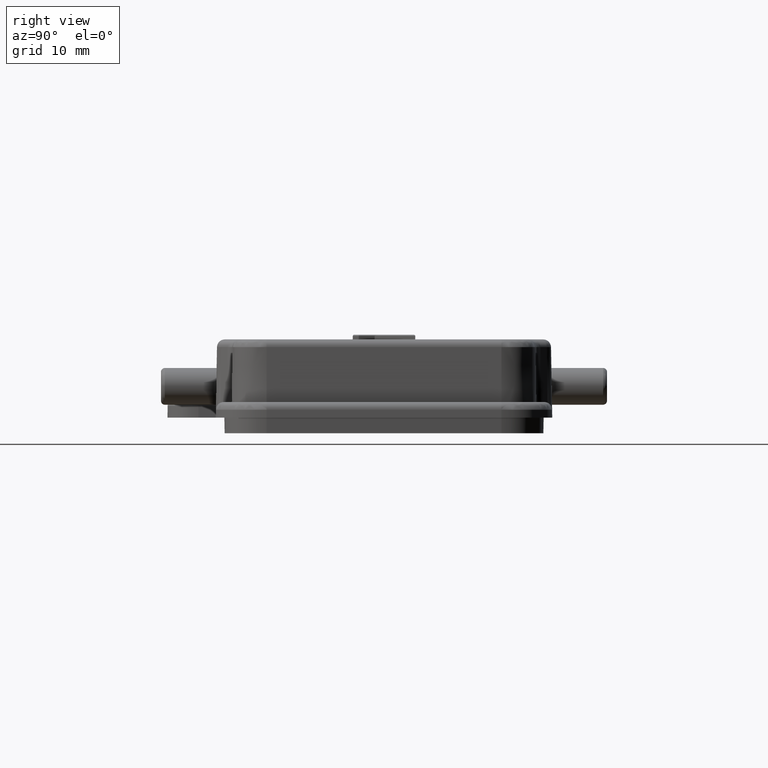
[diagram: clean part render]
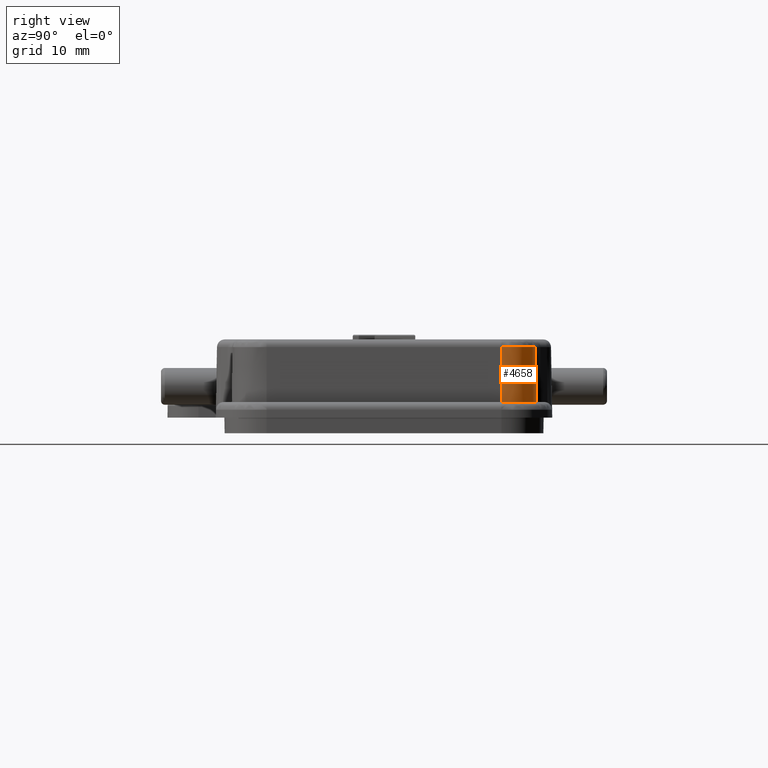
[diagram: same view with one face highlighted and labeled with its STEP entity id]
A machine part, right view. The second image highlights one B-rep face of the part: STEP entity #4658.
In plain terms, the highlighted conical surface has half-angle 1 deg.
Its self-contained STEP definition (entity closure, byte-faithful):
#4 = DIRECTION ( 'NONE',  ( -1.000000000000000000, 0.000000000000000000, 0.000000000000000000 ) ) ;
#378 = LINE ( 'NONE', #2678, #1929 ) ;
#667 = EDGE_CURVE ( 'NONE', #1499, #6733, #378, .T. ) ;
#769 = DIRECTION ( 'NONE',  ( -0.000000000000000000, -0.000000000000000000, -1.000000000000000000 ) ) ;
#788 = CARTESIAN_POINT ( 'NONE',  ( 1.356893301974950283, 0.5905511811023621549, 0.1574803149613818731 ) ) ;
#1192 = ORIENTED_EDGE ( 'NONE', *, *, #667, .F. ) ;
#1234 = EDGE_CURVE ( 'NONE', #1641, #6733, #4190, .T. ) ;
#1354 = FACE_OUTER_BOUND ( 'NONE', #3014, .T. ) ;
#1375 = DIRECTION ( 'NONE',  ( 0.000000000000000000, 0.000000000000000000, 1.000000000000000000 ) ) ;
#1421 = CIRCLE ( 'NONE', #6419, 0.1709684953841939803 ) ;
#1493 = ORIENTED_EDGE ( 'NONE', *, *, #1234, .T. ) ;
#1499 = VERTEX_POINT ( 'NONE', #4621 ) ;
#1641 = VERTEX_POINT ( 'NONE', #788 ) ;
#1929 = VECTOR ( 'NONE', #7114, 39.37007874015748143 ) ;
#2066 = DIRECTION ( 'NONE',  ( 1.000000000000000000, 0.000000000000000000, 0.000000000000000000 ) ) ;
#2084 = CARTESIAN_POINT ( 'NONE',  ( 344.2760747777819006, 0.5905511811023621549, -19645.66929133858503 ) ) ;
#2531 = CARTESIAN_POINT ( 'NONE',  ( 1.352070857590689679, 0.5905511811023621549, 0.4337579687576293419 ) ) ;
#2678 = CARTESIAN_POINT ( 'NONE',  ( 1.181102362204724310, 0.7677165354330708347, 0.07874015748031495954 ) ) ;
#3014 = EDGE_LOOP ( 'NONE', ( #6043, #1493, #1192, #4526 ) ) ;
#3452 = DIRECTION ( 'NONE',  ( 0.000000000000000000, 0.000000000000000000, 1.000000000000000000 ) ) ;
#3491 = CARTESIAN_POINT ( 'NONE',  ( 1.181102362204724310, 0.5905511811023621549, 0.1574803149613818731 ) ) ;
#4190 = CIRCLE ( 'NONE', #7082, 0.1757909397710337163 ) ;
#4204 = DIRECTION ( 'NONE',  ( 0.01745240641734326428, 0.000000000000000000, -0.9998476951567392135 ) ) ;
#4526 = ORIENTED_EDGE ( 'NONE', *, *, #5418, .F. ) ;
#4621 = CARTESIAN_POINT ( 'NONE',  ( 1.181102362204724310, 0.7615196764865554968, 0.4337579687573740461 ) ) ;
#4658 = ADVANCED_FACE ( 'NONE', ( #1354 ), #4760, .T. ) ;
#4760 = CONICAL_SURFACE ( 'NONE', #5109, 0.1757909397709946642, 0.01745329250008104821 ) ;
#4761 = EDGE_CURVE ( 'NONE', #5715, #1641, #5849, .T. ) ;
#4841 = CARTESIAN_POINT ( 'NONE',  ( 1.181102362204724310, 0.5905511811023621549, 0.4337579687573740461 ) ) ;
#5109 = AXIS2_PLACEMENT_3D ( 'NONE', #5775, #769, #5226 ) ;
#5226 = DIRECTION ( 'NONE',  ( -1.000000000000000000, 0.000000000000000000, 0.000000000000000000 ) ) ;
#5418 = EDGE_CURVE ( 'NONE', #5715, #1499, #1421, .T. ) ;
#5715 = VERTEX_POINT ( 'NONE', #2531 ) ;
#5775 = CARTESIAN_POINT ( 'NONE',  ( 1.181102362204724310, 0.5905511811023621549, 0.1574803149636198052 ) ) ;
#5849 = LINE ( 'NONE', #2084, #6960 ) ;
#6043 = ORIENTED_EDGE ( 'NONE', *, *, #4761, .T. ) ;
#6419 = AXIS2_PLACEMENT_3D ( 'NONE', #4841, #1375, #2066 ) ;
#6427 = CARTESIAN_POINT ( 'NONE',  ( 1.181102362204724310, 0.7663421208717874356, 0.1574803149610058961 ) ) ;
#6733 = VERTEX_POINT ( 'NONE', #6427 ) ;
#6960 = VECTOR ( 'NONE', #4204, 39.37007874015748143 ) ;
#7082 = AXIS2_PLACEMENT_3D ( 'NONE', #3491, #3452, #4 ) ;
#7114 = DIRECTION ( 'NONE',  ( -0.000000000000000000, 0.01745240643728350471, -0.9998476951563912696 ) ) ;